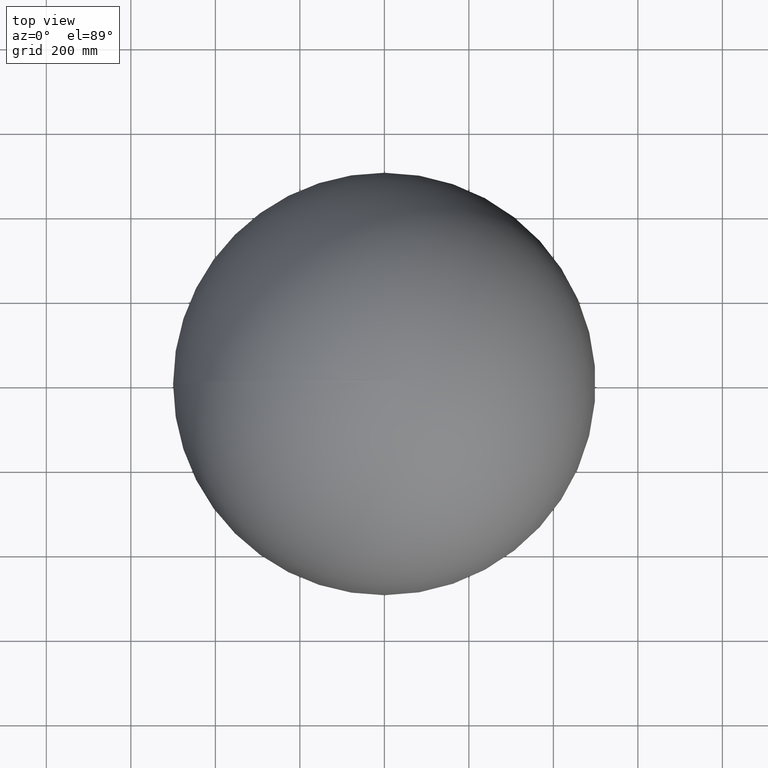
[diagram: clean part render]
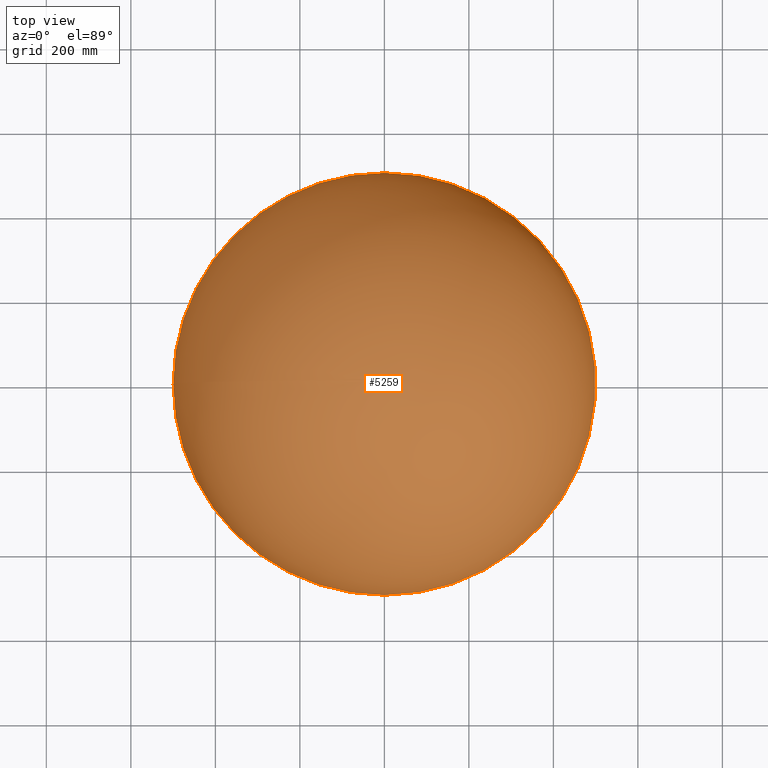
[diagram: same view with one face highlighted and labeled with its STEP entity id]
A machine part, top view. The second image highlights one B-rep face of the part: STEP entity #5259.
In plain terms, the highlighted spherical surface has radius 500 mm.
Its self-contained STEP definition (entity closure, byte-faithful):
#258 = VERTEX_POINT ( 'NONE', #3426 ) ;
#995 = CIRCLE ( 'NONE', #6802, 499.9999999999999400 ) ;
#1076 = EDGE_LOOP ( 'NONE', ( #7916, #2079 ) ) ;
#1092 = VERTEX_POINT ( 'NONE', #5967 ) ;
#1218 = SPHERICAL_SURFACE ( 'NONE', #8622, 499.9999999999999400 ) ;
#1326 = DIRECTION ( 'NONE',  ( -1.000000000000000000, 0.0000000000000000000, 0.0000000000000000000 ) ) ;
#1563 = CIRCLE ( 'NONE', #8729, 499.9999999999999400 ) ;
#2079 = ORIENTED_EDGE ( 'NONE', *, *, #4523, .T. ) ;
#2162 = DIRECTION ( 'NONE',  ( 0.0000000000000000000, 0.0000000000000000000, 1.000000000000000000 ) ) ;
#2197 = DIRECTION ( 'NONE',  ( -1.000000000000000000, -1.263427281120374900E-014, 0.0000000000000000000 ) ) ;
#2399 = FACE_OUTER_BOUND ( 'NONE', #1076, .T. ) ;
#3413 = DIRECTION ( 'NONE',  ( 0.0000000000000000000, -0.0000000000000000000, -1.000000000000000000 ) ) ;
#3426 = CARTESIAN_POINT ( 'NONE',  ( 6.286520235623190100E-012, -499.9999999999999400, 0.0000000000000000000 ) ) ;
#4523 = EDGE_CURVE ( 'NONE', #258, #1092, #995, .T. ) ;
#5259 = ADVANCED_FACE ( 'NONE', ( #2399 ), #1218, .T. ) ;
#5800 = CARTESIAN_POINT ( 'NONE',  ( 0.0000000000000000000, 0.0000000000000000000, 0.0000000000000000000 ) ) ;
#5967 = CARTESIAN_POINT ( 'NONE',  ( -6.347752575580557400E-012, 499.9999999999999400, 0.0000000000000000000 ) ) ;
#6144 = DIRECTION ( 'NONE',  ( -1.224646799147353200E-016, -1.547252175779510400E-030, 1.000000000000000000 ) ) ;
#6548 = CARTESIAN_POINT ( 'NONE',  ( 0.0000000000000000000, 0.0000000000000000000, 0.0000000000000000000 ) ) ;
#6802 = AXIS2_PLACEMENT_3D ( 'NONE', #8436, #6144, #9043 ) ;
#7190 = EDGE_CURVE ( 'NONE', #258, #1092, #1563, .T. ) ;
#7916 = ORIENTED_EDGE ( 'NONE', *, *, #7190, .F. ) ;
#8436 = CARTESIAN_POINT ( 'NONE',  ( 0.0000000000000000000, 0.0000000000000000000, 0.0000000000000000000 ) ) ;
#8622 = AXIS2_PLACEMENT_3D ( 'NONE', #6548, #2162, #2197 ) ;
#8729 = AXIS2_PLACEMENT_3D ( 'NONE', #5800, #3413, #1326 ) ;
#9043 = DIRECTION ( 'NONE',  ( 1.000000000000000000, 0.0000000000000000000, 1.224646799147353200E-016 ) ) ;